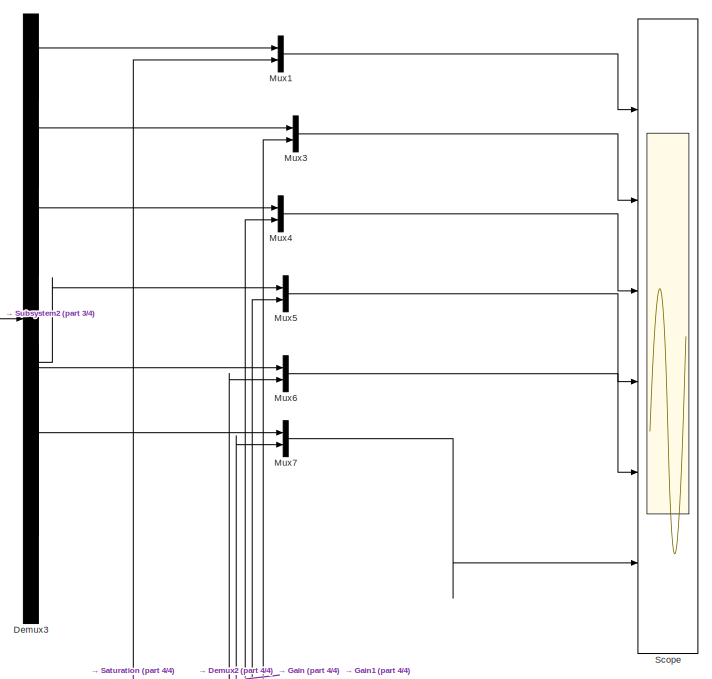
[diagram: root canvas - part 1/4, top center region]
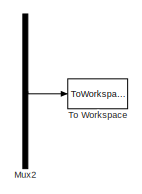
[diagram: root canvas - part 2/4, middle right region]
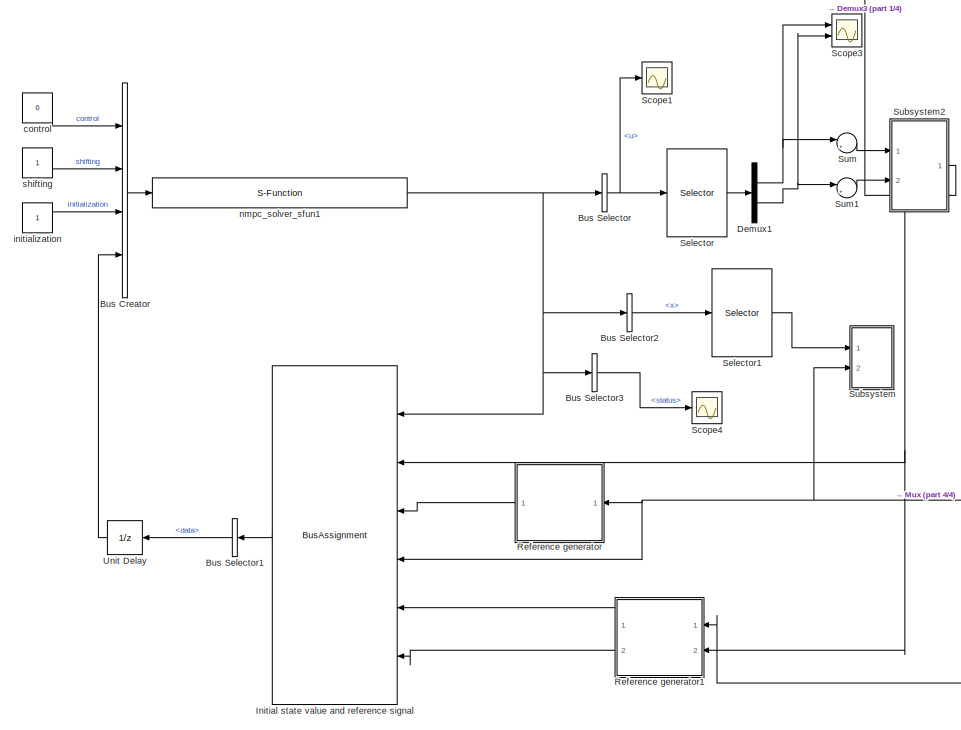
[diagram: root canvas - part 3/4, bottom left region]
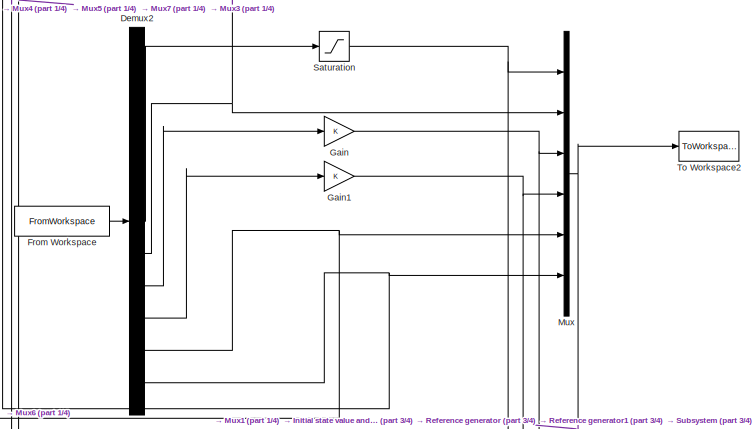
[diagram: root canvas - part 4/4, bottom center region]
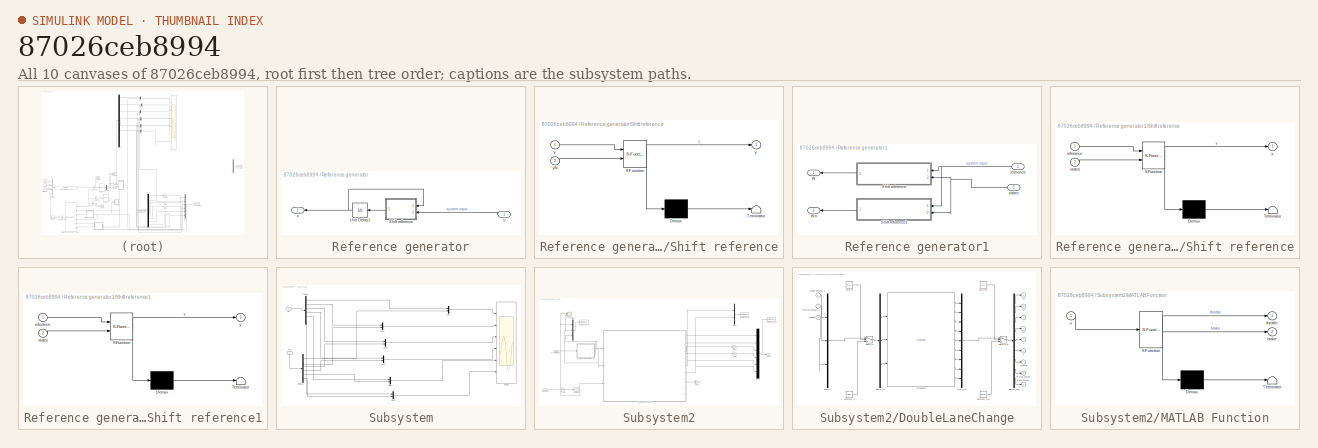
[diagram: thumbnail index - all 10 canvases of the model, root first then tree order]
MODEL slx_87026ceb8994
KIND model
CONFIG AbsTol = auto
CONFIG EnableMultiTasking = on
CONFIG FixedStep = Ts
CONFIG MaxStep = auto
CONFIG MinStep = auto
CONFIG RelTol = 1e-3
CONFIG SampleTimeConstraint = Unconstrained
CONFIG Solver = ode4
CONFIG SolverName = ode4
CONFIG StartTime = 0.0
CONFIG StopTime = 6
BLOCK [BusCreator] Bus Creator
  DisplayOption = bar
  InheritFromInputs = on
  Inputs = 4
  OutDataTypeStr = Bus: ACADOinput
  Ports = [4, 1]
BLOCK [BusSelector] Bus Selector
  OutputAsBus = off
  OutputSignals = data.u
  Ports = [1, 1]
BLOCK [BusSelector] Bus Selector1
  OutputAsBus = off
  OutputSignals = data
  Ports = [1, 1]
BLOCK [BusSelector] Bus Selector2
  OutputAsBus = off
  OutputSignals = data.x
  Ports = [1, 1]
BLOCK [BusSelector] Bus Selector3
  OutputAsBus = off
  OutputSignals = status
  Ports = [1, 1]
BLOCK [Demux] Demux1
  DisplayOption = bar
  Outputs = 2
  Ports = [1, 2]
BLOCK [Demux] Demux2
  DisplayOption = bar
  Outputs = 11
  Ports = [1, 11]
BLOCK [Demux] Demux3
  DisplayOption = bar
  Outputs = 6
  Ports = [1, 6]
BLOCK [FromWorkspace] From Workspace
  SampleTime = Ts
  VariableName = Trajectory4
  ZeroCross = on
BLOCK [Gain] Gain
  OutDataTypeStr = Inherit: Inherit via internal rule
  ParamDataTypeStr = Inherit: Inherit via internal rule
  SaturateOnIntegerOverflow = off
BLOCK [Gain] Gain1
  OutDataTypeStr = Inherit: Inherit via internal rule
  ParamDataTypeStr = Inherit: Inherit via internal rule
  SaturateOnIntegerOverflow = off
BLOCK [BusAssignment] Initial state value and reference signal
  AssignedSignals = data.x0,data.y,data.yN,data.W,data.WN
  Ports = [6, 1]
BLOCK [Mux] Mux
  DisplayOption = bar
  Inputs = 6
  Ports = [6, 1]
BLOCK [Mux] Mux1
  DisplayOption = bar
  Inputs = 2
  Ports = [2, 1]
BLOCK [Mux] Mux2
  DisplayOption = bar
  Inputs = 2
  Ports = [2, 1]
BLOCK [Mux] Mux3
  DisplayOption = bar
  Inputs = 2
  Ports = [2, 1]
BLOCK [Mux] Mux4
  DisplayOption = bar
  Inputs = 2
  Ports = [2, 1]
BLOCK [Mux] Mux5
  DisplayOption = bar
  Inputs = 2
  Ports = [2, 1]
BLOCK [Mux] Mux6
  DisplayOption = bar
  Inputs = 2
  Ports = [2, 1]
BLOCK [Mux] Mux7
  DisplayOption = bar
  Inputs = 2
  Ports = [2, 1]
BLOCK [SubSystem] Reference generator
  Ports = [1, 1]
  RequestExecContextInheritance = off
  Variant = off
BLOCK [SubSystem] Reference generator/Shift reference
  ErrorFcn = Stateflow.Translate.translate
  PermitHierarchicalResolution = ExplicitOnly
  Ports = [2, 1]
  RequestExecContextInheritance = off
  SFBlockType = MATLAB Function
  TreatAsAtomicUnit = on
  Variant = off
BLOCK [Demux] Reference generator/Shift reference/ Demux 
  Outputs = 1
  Ports = [1, 1]
BLOCK [S-Function] Reference generator/Shift reference/ SFunction 
  EnableBusSupport = off
  FunctionName = sf_sfun
  PortCounts = [2 2]
  Ports = [2, 2]
  SFcnIsStateOwnerBlock = off
  SFunctionDeploymentMode = off
  Tag = Stateflow S-Function untitled1 2
BLOCK [Terminator] Reference generator/Shift reference/ Terminator 
BLOCK [Outport] Reference generator/Shift reference/y
  IconDisplay = Port number
BLOCK [Inport] Reference generator/Shift reference/y 
  IconDisplay = Port number
BLOCK [Inport] Reference generator/Shift reference/yN
  IconDisplay = Port number
  Port = 2
BLOCK [UnitDelay] Reference generator/Unit Delay1
  InitialCondition = init.y
  SampleTime = Ts
BLOCK [Inport] Reference generator/u
  IconDisplay = Port number
BLOCK [Outport] Reference generator/x
  IconDisplay = Port number
BLOCK [SubSystem] Reference generator1
  Ports = [2, 2]
  RequestExecContextInheritance = off
  Variant = off
BLOCK [Inport] Reference generator1/ states
  IconDisplay = Port number
  Port = 2
BLOCK [SubSystem] Reference generator1/Shift reference
  ErrorFcn = Stateflow.Translate.translate
  PermitHierarchicalResolution = ExplicitOnly
  Ports = [2, 1]
  RequestExecContextInheritance = off
  SFBlockType = MATLAB Function
  TreatAsAtomicUnit = on
  Variant = off
BLOCK [Demux] Reference generator1/Shift reference/ Demux 
  Outputs = 1
  Ports = [1, 1]
BLOCK [S-Function] Reference generator1/Shift reference/ SFunction 
  EnableBusSupport = off
  FunctionName = sf_sfun
  PortCounts = [2 2]
  Ports = [2, 2]
  SFcnIsStateOwnerBlock = off
  SFunctionDeploymentMode = off
  Tag = Stateflow S-Function untitled1 3
BLOCK [Terminator] Reference generator1/Shift reference/ Terminator 
BLOCK [Inport] Reference generator1/Shift reference/referance
  IconDisplay = Port number
BLOCK [Inport] Reference generator1/Shift reference/states
  IconDisplay = Port number
  Port = 2
BLOCK [Outport] Reference generator1/Shift reference/y
  IconDisplay = Port number
BLOCK [SubSystem] Reference generator1/Shift reference1
  ErrorFcn = Stateflow.Translate.translate
  PermitHierarchicalResolution = ExplicitOnly
  Ports = [2, 1]
  RequestExecContextInheritance = off
  SFBlockType = MATLAB Function
  TreatAsAtomicUnit = on
  Variant = off
BLOCK [Demux] Reference generator1/Shift reference1/ Demux 
  Outputs = 1
  Ports = [1, 1]
BLOCK [S-Function] Reference generator1/Shift reference1/ SFunction 
  EnableBusSupport = off
  FunctionName = sf_sfun
  PortCounts = [2 2]
  Ports = [2, 2]
  SFcnIsStateOwnerBlock = off
  SFunctionDeploymentMode = off
  Tag = Stateflow S-Function untitled1 4
BLOCK [Terminator] Reference generator1/Shift reference1/ Terminator 
BLOCK [Inport] Reference generator1/Shift reference1/referance
  IconDisplay = Port number
BLOCK [Inport] Reference generator1/Shift reference1/states
  IconDisplay = Port number
  Port = 2
BLOCK [Outport] Reference generator1/Shift reference1/y
  IconDisplay = Port number
BLOCK [Outport] Reference generator1/W
  IconDisplay = Port number
BLOCK [Outport] Reference generator1/Wn
  IconDisplay = Port number
  Port = 2
BLOCK [Inport] Reference generator1/referance 
  IconDisplay = Port number
BLOCK [Saturate] Saturation
  InputPortMap = u0
  LowerLimit = 0
  Ports = [1, 1]
  UpperLimit = 40
BLOCK [Scope] Scope
  NumInputPorts = 6
  Ports = [6]
  ScopeSpecificationString = Simulink.scopes.TimeScopeBlockCfg('CurrentConfiguration', extmgr.ConfigurationSet(extmgr.Configuration('Core','General UI',true),extmgr.Configuration('Core','Source UI',true),extmgr.Configuration('Sources','WiredSimulink',true,'DataLoggingSaveFormat','Array','DataLoggingDecimation','1'),extmgr.Configuration('Visuals','Time Domain',true,'TimeAxisLabels','All','SerializedDisplays',{struct('MinYLimRe...<+5201ch>
BLOCK [Scope] Scope1
  NumInputPorts = 1
  Ports = [1]
  ScopeSpecificationString = Simulink.scopes.TimeScopeBlockCfg('CurrentConfiguration', extmgr.ConfigurationSet(extmgr.Configuration('Core','General UI',true),extmgr.Configuration('Core','Source UI',true),extmgr.Configuration('Sources','WiredSimulink',true,'DataLoggingVariableName','ScopeData1'),extmgr.Configuration('Visuals','Time Domain',true,'SerializedDisplays',{struct('MinYLimReal','-6.875','MaxYLimReal','6.875','YLabelRe...<+2156ch>
BLOCK [Scope] Scope3
  NumInputPorts = 2
  Ports = [2]
  ScopeSpecificationString = Simulink.scopes.TimeScopeBlockCfg('CurrentConfiguration', extmgr.ConfigurationSet(extmgr.Configuration('Core','General UI',true),extmgr.Configuration('Core','Source UI',true),extmgr.Configuration('Sources','WiredSimulink',true,'DataLoggingVariableName','ScopeData2'),extmgr.Configuration('Visuals','Time Domain',true,'SerializedDisplays',{struct('MinYLimReal','-0.1229','MaxYLimReal','0.23844','YLabe...<+2095ch>
BLOCK [Scope] Scope4
  NumInputPorts = 1
  Ports = [1]
  ScopeSpecificationString = Simulink.scopes.TimeScopeBlockCfg('CurrentConfiguration', extmgr.ConfigurationSet(extmgr.Configuration('Core','General UI',true),extmgr.Configuration('Core','Source UI',true),extmgr.Configuration('Sources','WiredSimulink',true,'DataLoggingVariableName','ScopeData1'),extmgr.Configuration('Visuals','Time Domain',true,'SerializedDisplays',{struct('MinYLimReal','-1.00000','MaxYLimReal','1.00000','YLab...<+1467ch>
BLOCK [Selector] Selector
  IndexOptions = Index vector (dialog)
  Indices = [1 2]
  InputPortWidth = 2*N
  OutputSizes = 2
  Ports = [1, 1]
BLOCK [Selector] Selector1
  IndexOptions = Index vector (dialog)
  Indices = [1 2 3 4 5 6]
  InputPortWidth = (N+1)*6
  OutputSizes = 2
  Ports = [1, 1]
BLOCK [SubSystem] Subsystem
  Ports = [2]
  RequestExecContextInheritance = off
  Variant = off
BLOCK [Demux] Subsystem/Demux
  DisplayOption = bar
  Outputs = 6
  Ports = [1, 6]
BLOCK [Demux] Subsystem/Demux1
  DisplayOption = bar
  Outputs = 6
  Ports = [1, 6]
BLOCK [Inport] Subsystem/In1
  IconDisplay = Port number
BLOCK [Inport] Subsystem/In2
  IconDisplay = Port number
  Port = 2
BLOCK [Mux] Subsystem/Mux
  DisplayOption = bar
  Inputs = 2
  Ports = [2, 1]
BLOCK [Mux] Subsystem/Mux1
  DisplayOption = bar
  Inputs = 2
  Ports = [2, 1]
BLOCK [Mux] Subsystem/Mux2
  DisplayOption = bar
  Inputs = 2
  Ports = [2, 1]
BLOCK [Mux] Subsystem/Mux3
  DisplayOption = bar
  Inputs = 2
  Ports = [2, 1]
BLOCK [Mux] Subsystem/Mux4
  DisplayOption = bar
  Inputs = 2
  Ports = [2, 1]
BLOCK [Mux] Subsystem/Mux5
  DisplayOption = bar
  Inputs = 2
  Ports = [2, 1]
BLOCK [Scope] Subsystem/Scope
  NumInputPorts = 6
  Ports = [6]
  ScopeSpecificationString = Simulink.scopes.TimeScopeBlockCfg('CurrentConfiguration', extmgr.ConfigurationSet(extmgr.Configuration('Core','General UI',true),extmgr.Configuration('Core','Source UI',true),extmgr.Configuration('Sources','WiredSimulink',true,'DataLoggingVariableName','ScopeData1'),extmgr.Configuration('Visuals','Time Domain',true,'SerializedDisplays',{struct('MinYLimReal','21.41174','MaxYLimReal','24.78136','YLa...<+4891ch>
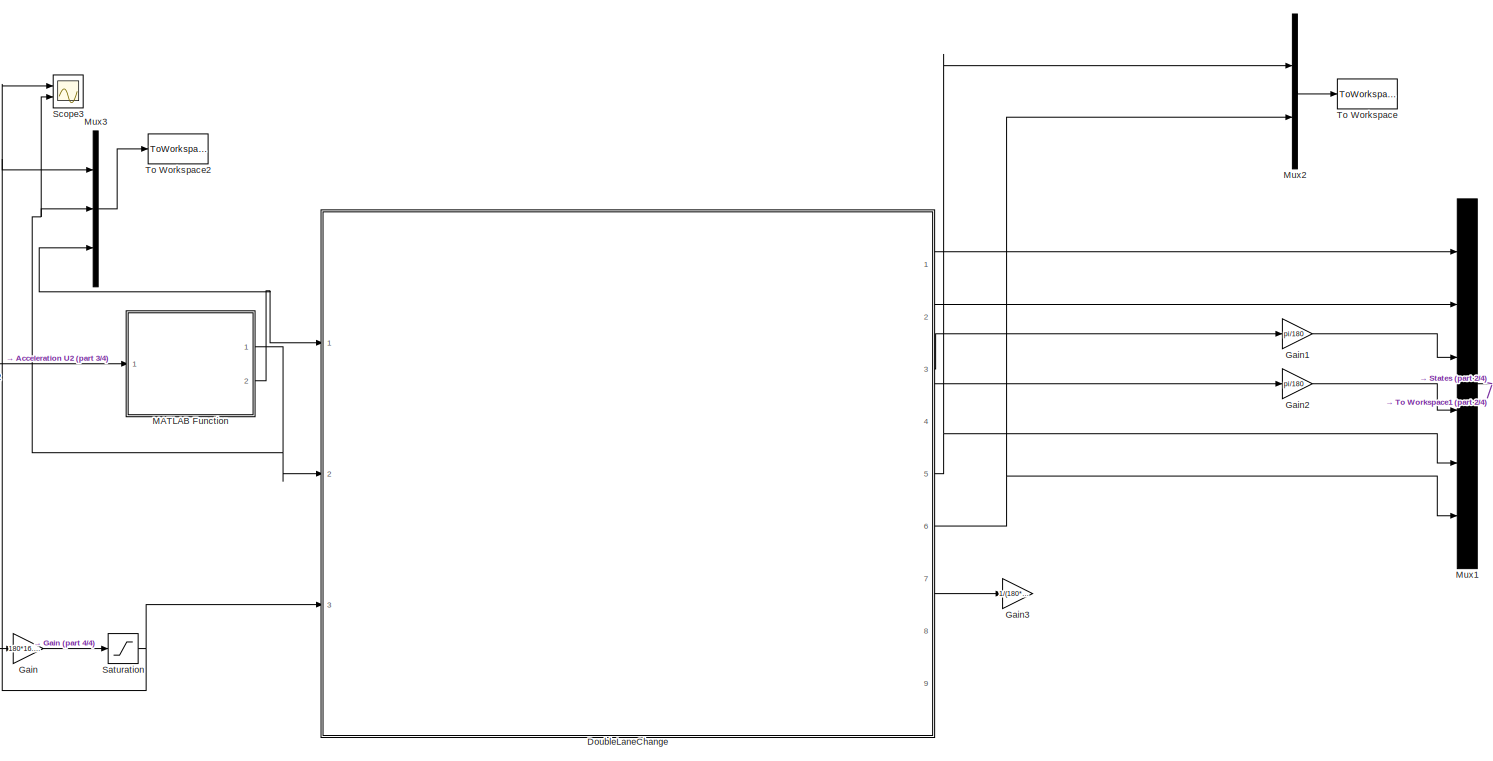
[diagram: Subsystem2 - part 1/4, most of the canvas]
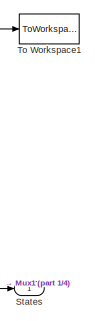
[diagram: Subsystem2 - part 2/4, middle right region]
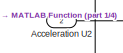
[diagram: Subsystem2 - part 3/4, middle left region]
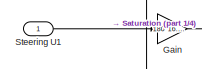
[diagram: Subsystem2 - part 4/4, bottom left region]
BLOCK [SubSystem] Subsystem2
  Ports = [2, 1]
  RequestExecContextInheritance = off
  Variant = off
BLOCK [Inport] Subsystem2/Acceleration U2
  IconDisplay = Port number
  Port = 2
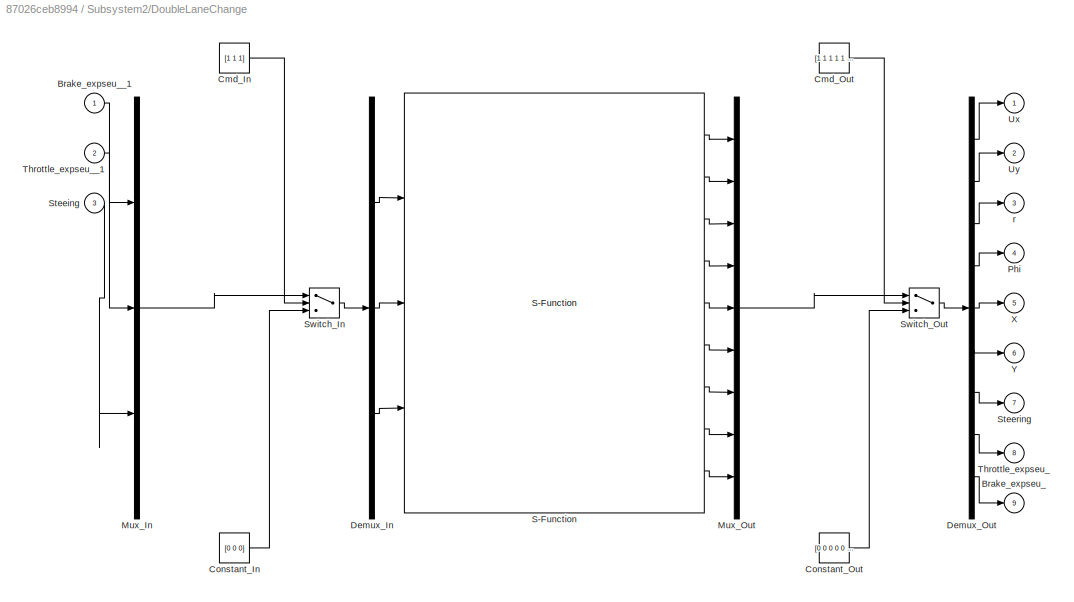
BLOCK [SubSystem] Subsystem2/DoubleLaneChange
  DeleteFcn = AMESimLib_deleteBlock
  InitFcn = AMESimLib_initBlock
  OpenFcn = AMESimLib_openBlock('AME2SLCoSim')
  Ports = [3, 9]
  RequestExecContextInheritance = off
  ShowPortLabels = FromPortBlockName
  StartFcn = AMESimLib_startBlock
  StopFcn = AMESimLib_stopBlock
  Tag = AME2SLCoSim
  UserDataPersistent = on
  Variant = off
BLOCK [Outport] Subsystem2/DoubleLaneChange/Brake_expseu_
  IconDisplay = Port number
  Port = 9
BLOCK [Inport] Subsystem2/DoubleLaneChange/Brake_expseu__1
  IconDisplay = Port number
BLOCK [Constant] Subsystem2/DoubleLaneChange/Cmd_In
  Value = [1 1 1]
BLOCK [Constant] Subsystem2/DoubleLaneChange/Cmd_Out
  Value = [1 1 1 1 1 1 1 1 1]
BLOCK [Constant] Subsystem2/DoubleLaneChange/Constant_In
  Value = [0 0 0]
BLOCK [Constant] Subsystem2/DoubleLaneChange/Constant_Out
  Value = [0 0 0 0 0 0 0 0 0]
BLOCK [Demux] Subsystem2/DoubleLaneChange/Demux_In
  DisplayOption = bar
  Outputs = 3
  Ports = [1, 3]
BLOCK [Demux] Subsystem2/DoubleLaneChange/Demux_Out
  DisplayOption = bar
  Outputs = 9
  Ports = [1, 9]
BLOCK [Mux] Subsystem2/DoubleLaneChange/Mux_In
  DisplayOption = bar
  Inputs = 3
  Ports = [3, 1]
BLOCK [Mux] Subsystem2/DoubleLaneChange/Mux_Out
  DisplayOption = bar
  Inputs = 9
  Ports = [9, 1]
BLOCK [Outport] Subsystem2/DoubleLaneChange/Phi
  IconDisplay = Port number
  Port = 4
BLOCK [S-Function] Subsystem2/DoubleLaneChange/S-Function
  EnableBusSupport = off
  FunctionName = DoubleLaneChange_
  InitFcn = clear DoubleLaneChange_
  Parameters = [0.01;0.001;1e-05;0.05;100;0;0;2;0;2;0.001;0;3] ['Grav           ';'Xg             ';'Zg             ';'Msprung        ';'Msteer         ';'Msp_front      ';'Mwh_front      ';'Msp_rear       ';'Mwh_rear       ';'Isprung_xx     ';'Isprung_yy     ';'Isprung_zz     ';'Isprung_xy     ';'Isprung_xz     ';'Isprung_yz     ';'Zref_front     ';'Zref_rear      ';'wheelbase      ';'track_front    ';'track_re...<+446ch>
  Ports = [3, 9]
  SFcnIsStateOwnerBlock = off
  SFunctionDeploymentMode = off
  StopFcn = clear DoubleLaneChange_
BLOCK [Inport] Subsystem2/DoubleLaneChange/Steeing
  IconDisplay = Port number
  Port = 3
BLOCK [Outport] Subsystem2/DoubleLaneChange/Steering
  IconDisplay = Port number
  Port = 7
BLOCK [Switch] Subsystem2/DoubleLaneChange/Switch_In
  Threshold = 0.5
BLOCK [Switch] Subsystem2/DoubleLaneChange/Switch_Out
  Threshold = 0.5
BLOCK [Outport] Subsystem2/DoubleLaneChange/Throttle_expseu_
  IconDisplay = Port number
  Port = 8
BLOCK [Inport] Subsystem2/DoubleLaneChange/Throttle_expseu__1
  IconDisplay = Port number
  Port = 2
BLOCK [Outport] Subsystem2/DoubleLaneChange/Ux
  IconDisplay = Port number
BLOCK [Outport] Subsystem2/DoubleLaneChange/Uy
  IconDisplay = Port number
  Port = 2
BLOCK [Outport] Subsystem2/DoubleLaneChange/X
  IconDisplay = Port number
  Port = 5
BLOCK [Outport] Subsystem2/DoubleLaneChange/Y
  IconDisplay = Port number
  Port = 6
BLOCK [Outport] Subsystem2/DoubleLaneChange/r
  IconDisplay = Port number
  Port = 3
BLOCK [Gain] Subsystem2/Gain
  Gain = 180*16.92/pi
  OutDataTypeStr = Inherit: Inherit via internal rule
  ParamDataTypeStr = Inherit: Inherit via internal rule
  SaturateOnIntegerOverflow = off
BLOCK [Gain] Subsystem2/Gain1
  Gain = pi/180
  OutDataTypeStr = Inherit: Inherit via internal rule
  ParamDataTypeStr = Inherit: Inherit via internal rule
  SaturateOnIntegerOverflow = off
BLOCK [Gain] Subsystem2/Gain2
  Gain = pi/180
  OutDataTypeStr = Inherit: Inherit via internal rule
  ParamDataTypeStr = Inherit: Inherit via internal rule
  SaturateOnIntegerOverflow = off
BLOCK [Gain] Subsystem2/Gain3
  Gain = 1/(180*18.2/pi)
  OutDataTypeStr = Inherit: Inherit via internal rule
  ParamDataTypeStr = Inherit: Inherit via internal rule
  SaturateOnIntegerOverflow = off
BLOCK [SubSystem] Subsystem2/MATLAB Function
  ErrorFcn = Stateflow.Translate.translate
  PermitHierarchicalResolution = ExplicitOnly
  Ports = [1, 2]
  RequestExecContextInheritance = off
  SFBlockType = MATLAB Function
  TreatAsAtomicUnit = on
  Variant = off
BLOCK [Demux] Subsystem2/MATLAB Function/ Demux 
  Outputs = 1
  Ports = [1, 1]
BLOCK [S-Function] Subsystem2/MATLAB Function/ SFunction 
  EnableBusSupport = off
  FunctionName = sf_sfun
  PortCounts = [1 3]
  Ports = [1, 3]
  SFcnIsStateOwnerBlock = off
  SFunctionDeploymentMode = off
  Tag = Stateflow S-Function untitled1 1
BLOCK [Terminator] Subsystem2/MATLAB Function/ Terminator 
BLOCK [Outport] Subsystem2/MATLAB Function/brake
  IconDisplay = Port number
  Port = 2
BLOCK [Outport] Subsystem2/MATLAB Function/throttle
  IconDisplay = Port number
BLOCK [Inport] Subsystem2/MATLAB Function/u
  IconDisplay = Port number
BLOCK [Mux] Subsystem2/Mux1
  DisplayOption = bar
  Inputs = 6
  Ports = [6, 1]
BLOCK [Mux] Subsystem2/Mux2
  DisplayOption = bar
  Inputs = 2
  Ports = [2, 1]
BLOCK [Mux] Subsystem2/Mux3
  DisplayOption = bar
  Inputs = 3
  Ports = [3, 1]
BLOCK [Saturate] Subsystem2/Saturation
  InputPortMap = u0
  LowerLimit = -180
  Ports = [1, 1]
  UpperLimit = 180
BLOCK [Scope] Subsystem2/Scope3
  NumInputPorts = 2
  Ports = [2]
  ScopeSpecificationString = Simulink.scopes.TimeScopeBlockCfg('CurrentConfiguration', extmgr.ConfigurationSet(extmgr.Configuration('Core','General UI',true),extmgr.Configuration('Core','Source UI',true),extmgr.Configuration('Sources','WiredSimulink',true,'DataLoggingVariableName','ScopeData1'),extmgr.Configuration('Visuals','Time Domain',true,'SerializedDisplays',{struct('MinYLimReal','-187.5','MaxYLimReal','187.5','YLabelRe...<+2078ch>
BLOCK [Outport] Subsystem2/States
  IconDisplay = Port number
BLOCK [Inport] Subsystem2/Steering U1
  IconDisplay = Port number
BLOCK [ToWorkspace] Subsystem2/To Workspace
  FixptAsFi = on
  MaxDataPoints = inf
  Ports = [1]
  SampleTime = -1
  Save2DSignal = 3-D array (concatenate along third dimension)
  VariableName = trajE1
BLOCK [ToWorkspace] Subsystem2/To Workspace1
  FixptAsFi = on
  MaxDataPoints = inf
  Ports = [1]
  SampleTime = -1
  Save2DSignal = 3-D array (concatenate along third dimension)
  SaveFormat = Timeseries
  VariableName = result
BLOCK [ToWorkspace] Subsystem2/To Workspace2
  FixptAsFi = on
  MaxDataPoints = inf
  Ports = [1]
  SampleTime = -1
  Save2DSignal = 3-D array (concatenate along third dimension)
  SaveFormat = Timeseries
  VariableName = control
BLOCK [Sum] Sum
  IconShape = round
  InputSameDT = off
  Inputs = |++
  OutDataTypeStr = Inherit: Inherit via internal rule
  Ports = [2, 1]
  SaturateOnIntegerOverflow = off
BLOCK [Sum] Sum1
  IconShape = round
  InputSameDT = off
  Inputs = |++
  OutDataTypeStr = Inherit: Inherit via internal rule
  Ports = [2, 1]
  SaturateOnIntegerOverflow = off
BLOCK [ToWorkspace] To Workspace
  FixptAsFi = on
  MaxDataPoints = inf
  Ports = [1]
  SampleTime = -1
  Save2DSignal = 3-D array (concatenate along third dimension)
  VariableName = trajE
BLOCK [ToWorkspace] To Workspace2
  FixptAsFi = on
  MaxDataPoints = inf
  Ports = [1]
  SampleTime = -1
  Save2DSignal = 3-D array (concatenate along third dimension)
  SaveFormat = Timeseries
  VariableName = referance
BLOCK [UnitDelay] Unit Delay
  InitialCondition = init
  SampleTime = Ts
BLOCK [Constant] control
  OutDataTypeStr = int32
  Value = 0
BLOCK [Constant] initialization
  OutDataTypeStr = int32
BLOCK [S-Function] nmpc_solver_sfun1
  EnableBusSupport = off
  FunctionName = nmpc_solver_sfun
  Ports = [1, 1]
  SFcnIsStateOwnerBlock = off
  SFunctionDeploymentMode = off
BLOCK [Constant] shifting
  OutDataTypeStr = int32
LINE Bus Creator:1 -> nmpc_solver_sfun1:1
LINE Bus Selector1:1 -> Unit Delay:1
LINE Bus Selector2:1 -> Selector1:1
LINE Bus Selector3:1 -> Scope4:1
NET Bus Selector:1 -> Scope1:1, Selector:1
NET Demux1:1 -> Scope3:1, Sum:1
NET Demux1:2 -> Scope3:2, Sum1:1
NET Demux2:10 -> Mux6:2, Mux:5
NET Demux2:11 -> Mux7:2, Mux:6
LINE Demux2:6 -> Saturation:1
NET Demux2:7 -> Mux3:2, Mux:2
LINE Demux2:8 -> Gain:1
LINE Demux2:9 -> Gain1:1
LINE Demux3:1 -> Mux1:1
LINE Demux3:2 -> Mux3:1
LINE Demux3:3 -> Mux4:1
LINE Demux3:4 -> Mux5:1
LINE Demux3:5 -> Mux6:1
LINE Demux3:6 -> Mux7:1
LINE From Workspace:1 -> Demux2:1
NET Gain1:1 -> Mux5:2, Mux:4
NET Gain:1 -> Mux4:2, Mux:3
LINE Initial state value and reference signal:1 -> Bus Selector1:1
LINE Mux1:1 -> Scope:1
LINE Mux2:1 -> To Workspace:1
LINE Mux3:1 -> Scope:2
LINE Mux4:1 -> Scope:3
LINE Mux5:1 -> Scope:4
LINE Mux6:1 -> Scope:5
LINE Mux7:1 -> Scope:6
NET Mux:1 -> Initial state value and reference signal:4, Reference generator1:1, Reference generator:1, Subsystem:2, To Workspace2:1
LINE Reference generator/Shift reference:1 -> Reference generator/Unit Delay1:1
NET Reference generator/Unit Delay1:1 -> Reference generator/Shift reference:1, Reference generator/x:1
LINE Reference generator/u:1 -> Reference generator/Shift reference:2
NET Reference generator1/ states:1 -> Reference generator1/Shift reference1:2, Reference generator1/Shift reference:2
LINE Reference generator1/Shift reference1:1 -> Reference generator1/Wn:1
LINE Reference generator1/Shift reference:1 -> Reference generator1/W:1
NET Reference generator1/referance :1 -> Reference generator1/Shift reference1:1, Reference generator1/Shift reference:1
LINE Reference generator1:1 -> Initial state value and reference signal:5
LINE Reference generator1:2 -> Initial state value and reference signal:6
LINE Reference generator:1 -> Initial state value and reference signal:3
NET Saturation:1 -> Mux1:2, Mux:1
LINE Selector1:1 -> Subsystem:1
LINE Selector:1 -> Demux1:1
LINE Subsystem/Demux1:1 -> Subsystem/Mux:2
LINE Subsystem/Demux1:2 -> Subsystem/Mux1:2
LINE Subsystem/Demux1:3 -> Subsystem/Mux2:2
LINE Subsystem/Demux1:4 -> Subsystem/Mux3:2
LINE Subsystem/Demux1:5 -> Subsystem/Mux4:2
LINE Subsystem/Demux1:6 -> Subsystem/Mux5:2
LINE Subsystem/Demux:1 -> Subsystem/Mux:1
LINE Subsystem/Demux:2 -> Subsystem/Mux1:1
LINE Subsystem/Demux:3 -> Subsystem/Mux2:1
LINE Subsystem/Demux:4 -> Subsystem/Mux3:1
LINE Subsystem/Demux:5 -> Subsystem/Mux4:1
LINE Subsystem/Demux:6 -> Subsystem/Mux5:1
LINE Subsystem/In1:1 -> Subsystem/Demux:1
LINE Subsystem/In2:1 -> Subsystem/Demux1:1
LINE Subsystem/Mux1:1 -> Subsystem/Scope:2
LINE Subsystem/Mux2:1 -> Subsystem/Scope:3
LINE Subsystem/Mux3:1 -> Subsystem/Scope:4
LINE Subsystem/Mux4:1 -> Subsystem/Scope:5
LINE Subsystem/Mux5:1 -> Subsystem/Scope:6
LINE Subsystem/Mux:1 -> Subsystem/Scope:1
LINE Subsystem2/Acceleration U2:1 -> Subsystem2/MATLAB Function:1
LINE Subsystem2/DoubleLaneChange/Brake_expseu__1:1 -> Subsystem2/DoubleLaneChange/Mux_In:1
LINE Subsystem2/DoubleLaneChange/Cmd_In:1 -> Subsystem2/DoubleLaneChange/Switch_In:2
LINE Subsystem2/DoubleLaneChange/Cmd_Out:1 -> Subsystem2/DoubleLaneChange/Switch_Out:2
LINE Subsystem2/DoubleLaneChange/Constant_In:1 -> Subsystem2/DoubleLaneChange/Switch_In:3
LINE Subsystem2/DoubleLaneChange/Constant_Out:1 -> Subsystem2/DoubleLaneChange/Switch_Out:3
LINE Subsystem2/DoubleLaneChange/Demux_In:1 -> Subsystem2/DoubleLaneChange/S-Function:1
LINE Subsystem2/DoubleLaneChange/Demux_In:2 -> Subsystem2/DoubleLaneChange/S-Function:2
LINE Subsystem2/DoubleLaneChange/Demux_In:3 -> Subsystem2/DoubleLaneChange/S-Function:3
LINE Subsystem2/DoubleLaneChange/Demux_Out:1 -> Subsystem2/DoubleLaneChange/Ux:1
LINE Subsystem2/DoubleLaneChange/Demux_Out:2 -> Subsystem2/DoubleLaneChange/Uy:1
LINE Subsystem2/DoubleLaneChange/Demux_Out:3 -> Subsystem2/DoubleLaneChange/r:1
LINE Subsystem2/DoubleLaneChange/Demux_Out:4 -> Subsystem2/DoubleLaneChange/Phi:1
LINE Subsystem2/DoubleLaneChange/Demux_Out:5 -> Subsystem2/DoubleLaneChange/X:1
LINE Subsystem2/DoubleLaneChange/Demux_Out:6 -> Subsystem2/DoubleLaneChange/Y:1
LINE Subsystem2/DoubleLaneChange/Demux_Out:7 -> Subsystem2/DoubleLaneChange/Steering:1
LINE Subsystem2/DoubleLaneChange/Demux_Out:8 -> Subsystem2/DoubleLaneChange/Throttle_expseu_:1
LINE Subsystem2/DoubleLaneChange/Demux_Out:9 -> Subsystem2/DoubleLaneChange/Brake_expseu_:1
LINE Subsystem2/DoubleLaneChange/Mux_In:1 -> Subsystem2/DoubleLaneChange/Switch_In:1
LINE Subsystem2/DoubleLaneChange/Mux_Out:1 -> Subsystem2/DoubleLaneChange/Switch_Out:1
LINE Subsystem2/DoubleLaneChange/S-Function:1 -> Subsystem2/DoubleLaneChange/Mux_Out:1
LINE Subsystem2/DoubleLaneChange/S-Function:2 -> Subsystem2/DoubleLaneChange/Mux_Out:2
LINE Subsystem2/DoubleLaneChange/S-Function:3 -> Subsystem2/DoubleLaneChange/Mux_Out:3
LINE Subsystem2/DoubleLaneChange/S-Function:4 -> Subsystem2/DoubleLaneChange/Mux_Out:4
LINE Subsystem2/DoubleLaneChange/S-Function:5 -> Subsystem2/DoubleLaneChange/Mux_Out:5
LINE Subsystem2/DoubleLaneChange/S-Function:6 -> Subsystem2/DoubleLaneChange/Mux_Out:6
LINE Subsystem2/DoubleLaneChange/S-Function:7 -> Subsystem2/DoubleLaneChange/Mux_Out:7
LINE Subsystem2/DoubleLaneChange/S-Function:8 -> Subsystem2/DoubleLaneChange/Mux_Out:8
LINE Subsystem2/DoubleLaneChange/S-Function:9 -> Subsystem2/DoubleLaneChange/Mux_Out:9
LINE Subsystem2/DoubleLaneChange/Steeing:1 -> Subsystem2/DoubleLaneChange/Mux_In:3
LINE Subsystem2/DoubleLaneChange/Switch_In:1 -> Subsystem2/DoubleLaneChange/Demux_In:1
LINE Subsystem2/DoubleLaneChange/Switch_Out:1 -> Subsystem2/DoubleLaneChange/Demux_Out:1
LINE Subsystem2/DoubleLaneChange/Throttle_expseu__1:1 -> Subsystem2/DoubleLaneChange/Mux_In:2
LINE Subsystem2/DoubleLaneChange:1 -> Subsystem2/Mux1:1
LINE Subsystem2/DoubleLaneChange:2 -> Subsystem2/Mux1:2
LINE Subsystem2/DoubleLaneChange:3 -> Subsystem2/Gain1:1
LINE Subsystem2/DoubleLaneChange:4 -> Subsystem2/Gain2:1
NET Subsystem2/DoubleLaneChange:5 -> Subsystem2/Mux1:5, Subsystem2/Mux2:1
NET Subsystem2/DoubleLaneChange:6 -> Subsystem2/Mux1:6, Subsystem2/Mux2:2
LINE Subsystem2/DoubleLaneChange:7 -> Subsystem2/Gain3:1
LINE Subsystem2/Gain1:1 -> Subsystem2/Mux1:3
LINE Subsystem2/Gain2:1 -> Subsystem2/Mux1:4
LINE Subsystem2/Gain:1 -> Subsystem2/Saturation:1
NET Subsystem2/MATLAB Function:1 -> Subsystem2/DoubleLaneChange:2, Subsystem2/Mux3:2, Subsystem2/Scope3:2
NET Subsystem2/MATLAB Function:2 -> Subsystem2/DoubleLaneChange:1, Subsystem2/Mux3:3
NET Subsystem2/Mux1:1 -> Subsystem2/States:1, Subsystem2/To Workspace1:1
LINE Subsystem2/Mux2:1 -> Subsystem2/To Workspace:1
LINE Subsystem2/Mux3:1 -> Subsystem2/To Workspace2:1
NET Subsystem2/Saturation:1 -> Subsystem2/DoubleLaneChange:3, Subsystem2/Mux3:1, Subsystem2/Scope3:1
LINE Subsystem2/Steering U1:1 -> Subsystem2/Gain:1
NET Subsystem2:1 -> Demux3:1, Initial state value and reference signal:2, Reference generator1:2
LINE Sum1:1 -> Subsystem2:2
LINE Sum:1 -> Subsystem2:1
LINE Unit Delay:1 -> Bus Creator:4
LINE control:1 -> Bus Creator:1
LINE initialization:1 -> Bus Creator:3
NET nmpc_solver_sfun1:1 -> Bus Selector2:1, Bus Selector3:1, Bus Selector:1, Initial state value and reference signal:1
LINE shifting:1 -> Bus Creator:2
note: NET lines group one-source signal fan-out (src -> all destinations, sorted); 1:1 wires keep LINE
CHART Subsystem2/MATLAB Function states=1 transitions=1
  STATE_LABEL 'eML_blk_kernel()'
  STATE_LABEL 'SCRIPT:\nfunction [throttle, brake]= fcn(u)\n%#codegen\n\nif u > 0\n    throttle = abs(u);\n    brake = 0;\nelse\n    brake = -0.2*abs(u);\n    throttle = 0;\nend\n\n\n\nend'
CHART Reference generator/Shift reference states=1 transitions=1
  STATE_LABEL 'eML_blk_kernel()'
  STATE_LABEL 'SCRIPT:\nfunction y = shift_reference(y, yN)\n\nNX = 6;\nNU = 2;\n\ny = [y(NX+NU+1:end);yN;y(end-NU+1:end)];\n'
CHART Reference generator1/Shift reference states=1 transitions=1
  STATE_LABEL 'eML_blk_kernel()'
  STATE_LABEL 'SCRIPT:\nfunction y = shift_reference(referance, states)\n   \n\tEUx = abs(referance(1)-states(1)) ;\n\tEUy = abs(referance(2)-states(2)) ;\n\tEr  = abs(referance(3)-states(3)) ;\n\tEphi= abs(referance(4)-states(4)) ;\n\tEX  = abs(referance(5)-states(5)) ;\n\tEY  = abs(referance(6)-states(6)) ;\n    \nQUx=10*(1+0.1*EUx);\nQUy=0;\nQr=10;\nQphi=50;\nQX=10*(1+0.1*EX);\nQY=20*(1+0.3*EY);\n\nRs=15;\nRt=20;\n\nw= diag([ QUx  QUy...<+61ch>'
CHART Reference generator1/Shift reference1 states=1 transitions=1
  STATE_LABEL 'eML_blk_kernel()'
  STATE_LABEL 'SCRIPT:\nfunction y = shift_reference(referance, states)\n    \n\tEUx = abs(referance(1)-states(1)) ;\n\tEUy = abs(referance(2)-states(2)) ;\n\tEr  = abs(referance(3)-states(3)) ;\n\tEphi= abs(referance(4)-states(4)) ;\n\tEX  = abs(referance(5)-states(5)) ;\n\tEY  = abs(referance(6)-states(6)) ;\n\nQUx=5;\nQUy=0;\nQr=10;\nQphi=50;\nQX=30;\nQY=20;\n\nRs=30;\nRt=1;\n\nwn= diag([ QUx  QUy Qr Qphi  QX  QY   ]);\n wn= reshape (w...<+18ch>'
